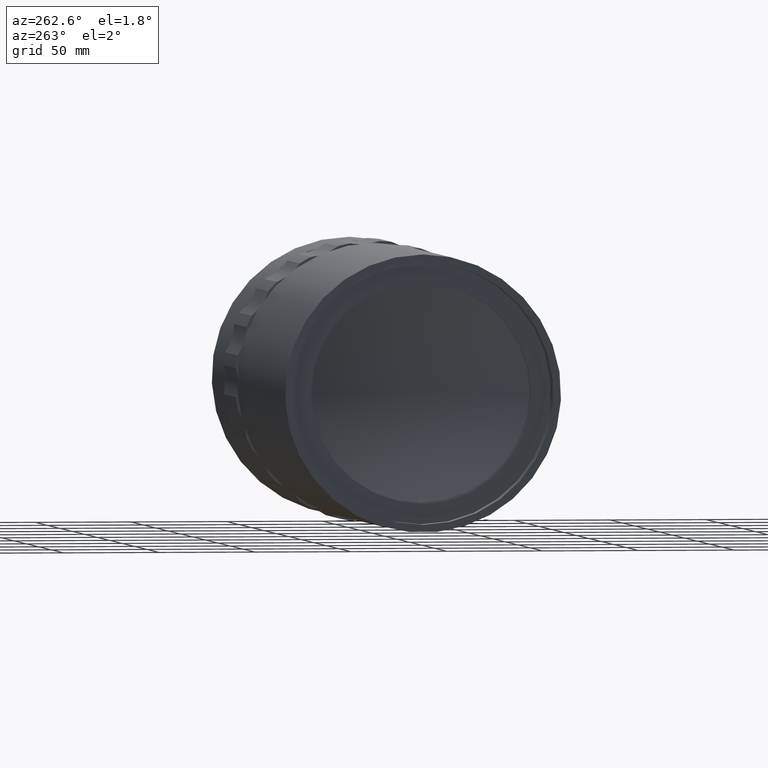
[diagram: clean part render]
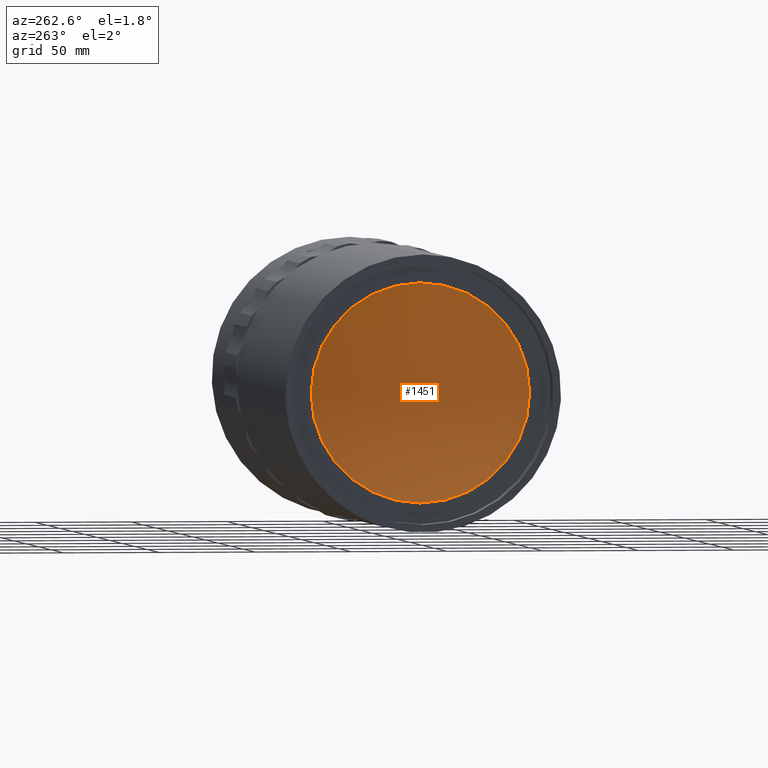
[diagram: same view with one face highlighted and labeled with its STEP entity id]
A machine part, auxiliary view. The second image highlights one B-rep face of the part: STEP entity #1451.
In plain terms, the highlighted spherical surface has radius 142.855 mm.
Its self-contained STEP definition (entity closure, byte-faithful):
#34 = CARTESIAN_POINT ( 'NONE',  ( -192.9525099641502379, -5.212497100615109957E-14, 57.00000000000007105 ) ) ;
#248 = VERTEX_POINT ( 'NONE', #34 ) ;
#253 = FACE_OUTER_BOUND ( 'NONE', #2402, .T. ) ;
#419 = EDGE_CURVE ( 'NONE', #248, #248, #1877, .T. ) ;
#490 = AXIS2_PLACEMENT_3D ( 'NONE', #861, #1949, #2146 ) ;
#693 = CARTESIAN_POINT ( 'NONE',  ( -323.9431012619474473, -5.212497100615109957E-14, 2.053482844696057004E-13 ) ) ;
#861 = CARTESIAN_POINT ( 'NONE',  ( -192.9525099641502663, -5.212497100615109957E-14, 1.436587895188742075E-13 ) ) ;
#1153 = DIRECTION ( 'NONE',  ( 1.000000000000000000, -2.783035370059766866E-15, -8.542607606438490369E-14 ) ) ;
#1299 = ORIENTED_EDGE ( 'NONE', *, *, #419, .F. ) ;
#1380 = DIRECTION ( 'NONE',  ( -8.542607606438490369E-14, -3.829709686415535776E-16, -1.000000000000000000 ) ) ;
#1451 = ADVANCED_FACE ( 'NONE', ( #253 ), #2686, .F. ) ;
#1877 = CIRCLE ( 'NONE', #490, 56.99999999999992895 ) ;
#1949 = DIRECTION ( 'NONE',  ( 1.000000000000000000, -0.000000000000000000, -4.709459995526329585E-16 ) ) ;
#2043 = AXIS2_PLACEMENT_3D ( 'NONE', #693, #1380, #1153 ) ;
#2146 = DIRECTION ( 'NONE',  ( 4.869399230812096352E-16, 0.000000000000000000, 1.000000000000000000 ) ) ;
#2402 = EDGE_LOOP ( 'NONE', ( #1299 ) ) ;
#2686 = SPHERICAL_SURFACE ( 'NONE', #2043, 142.8549439415610038 ) ;